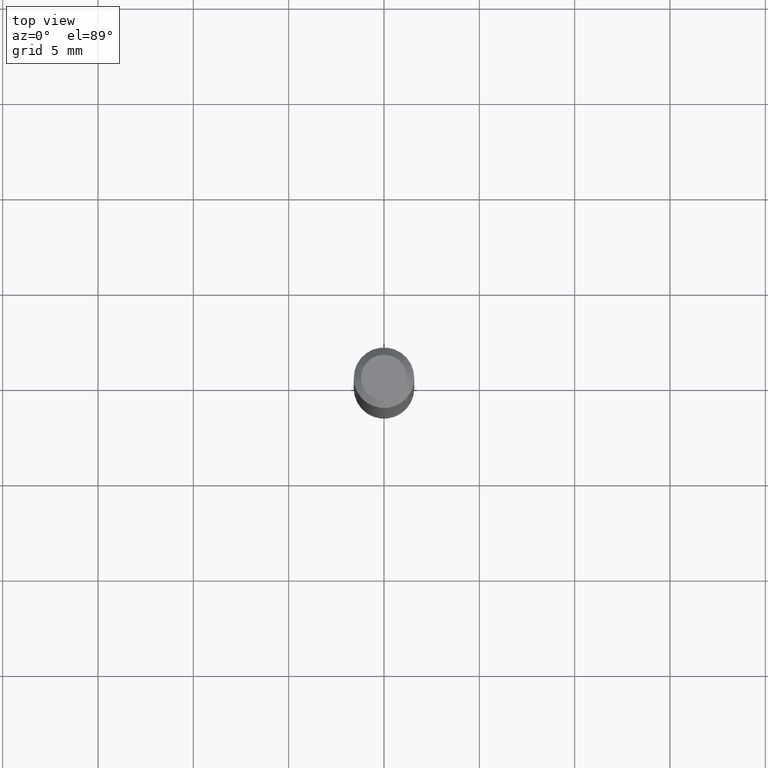
[diagram: clean part render]
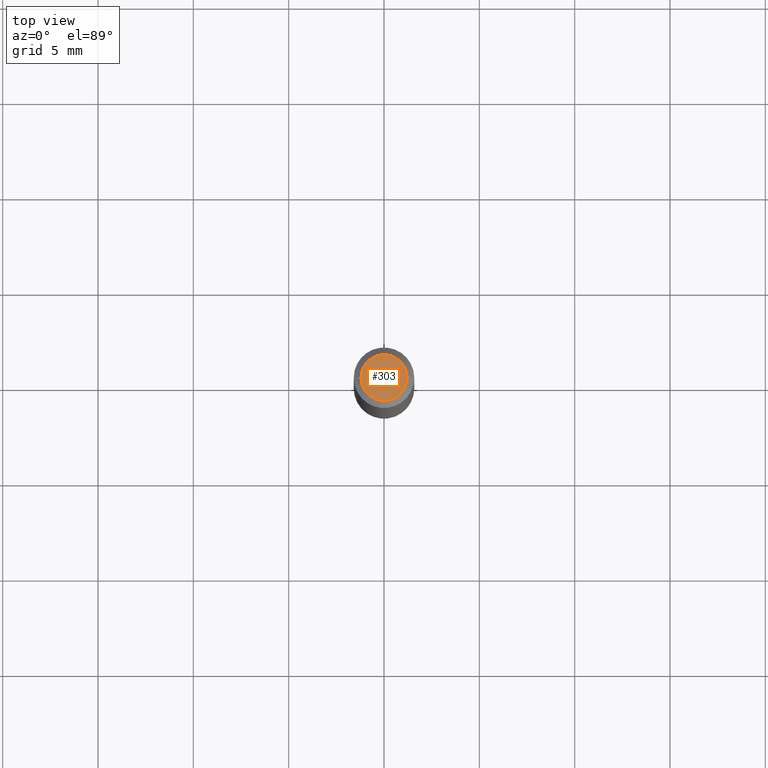
[diagram: same view with one face highlighted and labeled with its STEP entity id]
A machine part, top view. The second image highlights one B-rep face of the part: STEP entity #303.
In plain terms, the highlighted planar face has unit normal (0, -0, -1).
Its self-contained STEP definition (entity closure, byte-faithful):
#13 = PLANE ( 'NONE',  #176 ) ;
#39 = DIRECTION ( 'NONE',  ( 1.000000000000000000, -6.982962677686267499E-15, 4.884662768193073002E-29 ) ) ;
#48 = CARTESIAN_POINT ( 'NONE',  ( -3.223020679335594837E-45, 4.601619341103081537E-31, 1.317956160873471783E-16 ) ) ;
#59 = AXIS2_PLACEMENT_3D ( 'NONE', #48, #133, #127 ) ;
#77 = CARTESIAN_POINT ( 'NONE',  ( 0.04749999999999999362, -4.035134999187576158E-16, 1.317956160873497667E-16 ) ) ;
#87 = CIRCLE ( 'NONE', #384, 0.04749999999999999362 ) ;
#114 = CIRCLE ( 'NONE', #59, 0.04749999999999999362 ) ;
#123 = DIRECTION ( 'NONE',  ( -1.000000000000000000, 6.982962677686265922E-15, -4.876176775795935793E-29 ) ) ;
#127 = DIRECTION ( 'NONE',  ( 1.000000000000000000, -6.982962677686267499E-15, 4.884662768193073002E-29 ) ) ;
#133 = DIRECTION ( 'NONE',  ( -2.445468806185136597E-29, 3.491481338843145583E-15, 1.000000000000000000 ) ) ;
#146 = VERTEX_POINT ( 'NONE', #77 ) ;
#159 = CARTESIAN_POINT ( 'NONE',  ( -3.223020679335594837E-45, 4.601619341103081537E-31, 1.317956160873471783E-16 ) ) ;
#160 = CARTESIAN_POINT ( 'NONE',  ( -0.04749999999999999362, 3.578768372314212971E-16, 1.317956160873447624E-16 ) ) ;
#176 = AXIS2_PLACEMENT_3D ( 'NONE', #332, #306, #123 ) ;
#187 = VERTEX_POINT ( 'NONE', #160 ) ;
#293 = ORIENTED_EDGE ( 'NONE', *, *, #465, .T. ) ;
#295 = EDGE_CURVE ( 'NONE', #187, #146, #87, .T. ) ;
#303 = ADVANCED_FACE ( 'NONE', ( #374 ), #13, .F. ) ;
#306 = DIRECTION ( 'NONE',  ( 2.438088387897960049E-29, -3.491481338843145188E-15, -1.000000000000000000 ) ) ;
#332 = CARTESIAN_POINT ( 'NONE',  ( 3.316907271900976096E-16, 0.04749999999999999362, -9.994755555137580731E-17 ) ) ;
#338 = EDGE_LOOP ( 'NONE', ( #381, #293 ) ) ;
#374 = FACE_OUTER_BOUND ( 'NONE', #338, .T. ) ;
#381 = ORIENTED_EDGE ( 'NONE', *, *, #295, .T. ) ;
#384 = AXIS2_PLACEMENT_3D ( 'NONE', #159, #405, #39 ) ;
#405 = DIRECTION ( 'NONE',  ( -2.445468806185136597E-29, 3.491481338843145583E-15, 1.000000000000000000 ) ) ;
#465 = EDGE_CURVE ( 'NONE', #146, #187, #114, .T. ) ;